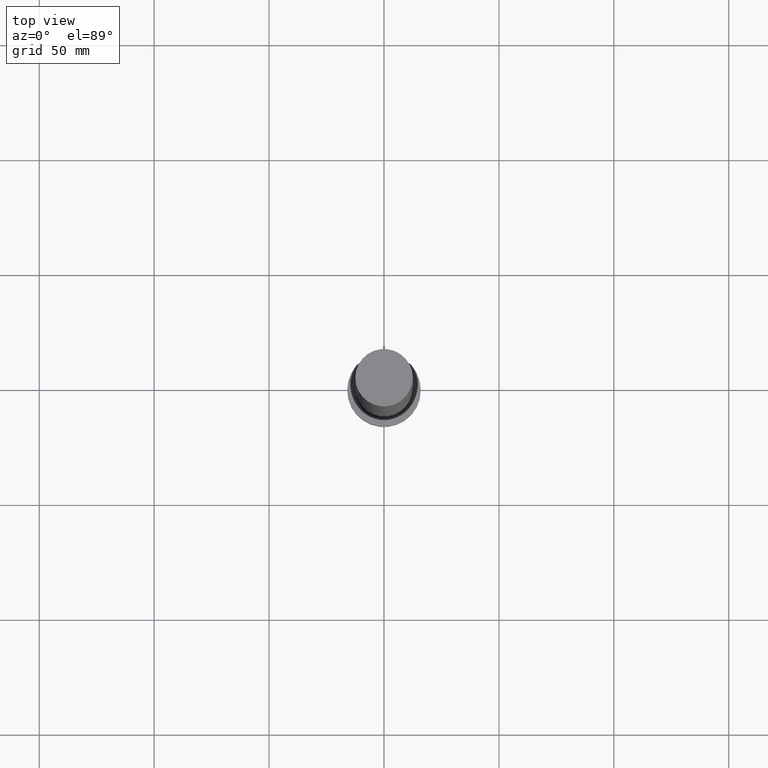
[diagram: clean part render]
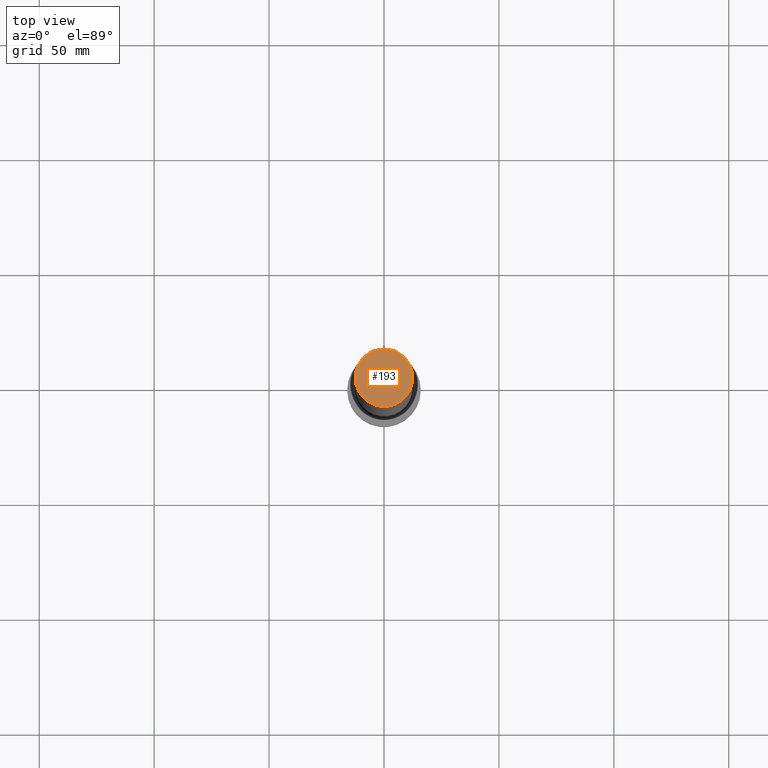
[diagram: same view with one face highlighted and labeled with its STEP entity id]
A machine part, top view. The second image highlights one B-rep face of the part: STEP entity #193.
In plain terms, the highlighted planar face has unit normal (0, 0, 1).
Its self-contained STEP definition (entity closure, byte-faithful):
#10 = PLANE ( 'NONE',  #63 ) ;
#41 = VERTEX_POINT ( 'NONE', #73 ) ;
#49 = FACE_OUTER_BOUND ( 'NONE', #134, .T. ) ;
#60 = CARTESIAN_POINT ( 'NONE',  ( 0.000000000000000000, 0.000000000000000000, 315.0000000000000000 ) ) ;
#63 = AXIS2_PLACEMENT_3D ( 'NONE', #60, #97, #142 ) ;
#64 = AXIS2_PLACEMENT_3D ( 'NONE', #213, #228, #238 ) ;
#72 = DIRECTION ( 'NONE',  ( 0.000000000000000000, 0.000000000000000000, 1.000000000000000000 ) ) ;
#73 = CARTESIAN_POINT ( 'NONE',  ( -12.50000000000000000, 0.000000000000000000, 315.0000000000000000 ) ) ;
#74 = EDGE_CURVE ( 'NONE', #41, #87, #221, .T. ) ;
#87 = VERTEX_POINT ( 'NONE', #222 ) ;
#97 = DIRECTION ( 'NONE',  ( 0.000000000000000000, 0.000000000000000000, 1.000000000000000000 ) ) ;
#116 = CARTESIAN_POINT ( 'NONE',  ( 0.000000000000000000, 0.000000000000000000, 315.0000000000000000 ) ) ;
#122 = AXIS2_PLACEMENT_3D ( 'NONE', #116, #72, #137 ) ;
#131 = CIRCLE ( 'NONE', #122, 12.50000000000000000 ) ;
#134 = EDGE_LOOP ( 'NONE', ( #227, #200 ) ) ;
#137 = DIRECTION ( 'NONE',  ( 1.000000000000000000, 0.000000000000000000, 0.000000000000000000 ) ) ;
#142 = DIRECTION ( 'NONE',  ( 1.000000000000000000, 0.000000000000000000, -0.000000000000000000 ) ) ;
#166 = EDGE_CURVE ( 'NONE', #87, #41, #131, .T. ) ;
#193 = ADVANCED_FACE ( 'NONE', ( #49 ), #10, .T. ) ;
#200 = ORIENTED_EDGE ( 'NONE', *, *, #166, .T. ) ;
#213 = CARTESIAN_POINT ( 'NONE',  ( 0.000000000000000000, 0.000000000000000000, 315.0000000000000000 ) ) ;
#221 = CIRCLE ( 'NONE', #64, 12.50000000000000000 ) ;
#222 = CARTESIAN_POINT ( 'NONE',  ( 12.50000000000000000, 1.530808498934191521E-15, 315.0000000000000000 ) ) ;
#227 = ORIENTED_EDGE ( 'NONE', *, *, #74, .T. ) ;
#228 = DIRECTION ( 'NONE',  ( 0.000000000000000000, 0.000000000000000000, 1.000000000000000000 ) ) ;
#238 = DIRECTION ( 'NONE',  ( 1.000000000000000000, 0.000000000000000000, 0.000000000000000000 ) ) ;